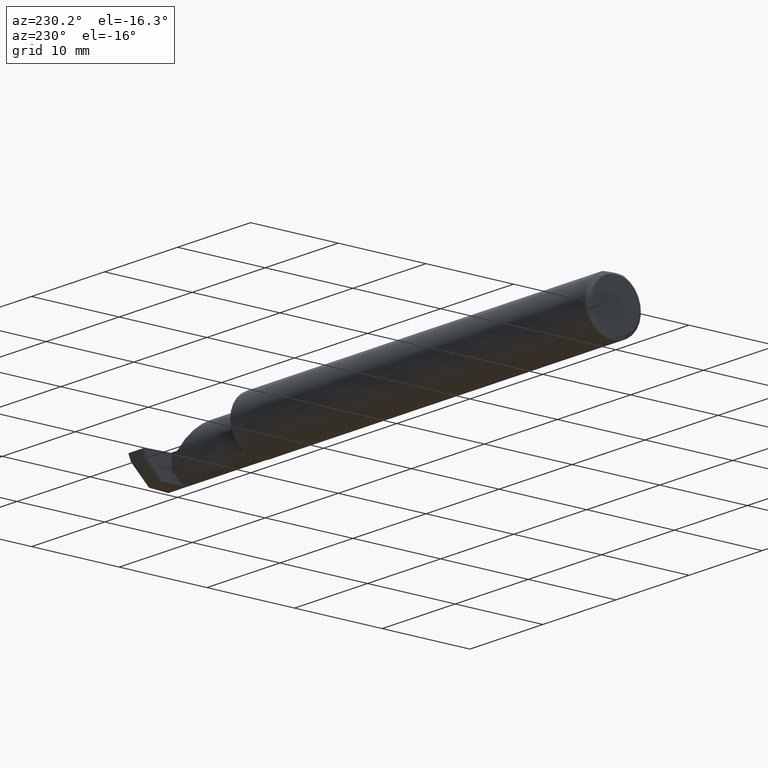
[diagram: clean part render]
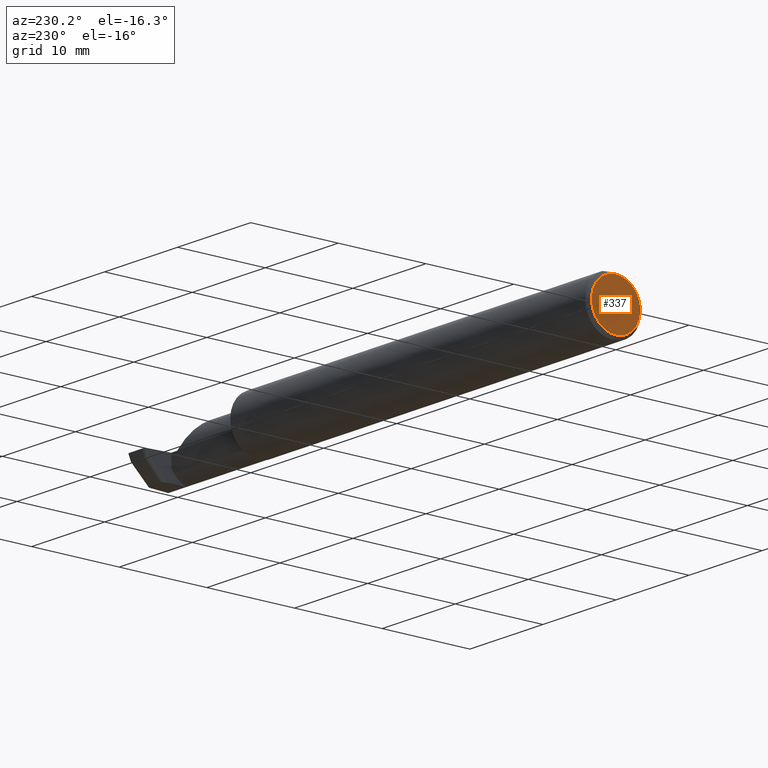
[diagram: same view with one face highlighted and labeled with its STEP entity id]
A machine part, auxiliary view. The second image highlights one B-rep face of the part: STEP entity #337.
In plain terms, the highlighted planar face has unit normal (1, 0, 0).
Its self-contained STEP definition (entity closure, byte-faithful):
#41 = CIRCLE ( 'NONE', #523, 0.1098500000000004473 ) ;
#68 = DIRECTION ( 'NONE',  ( 0.000000000000000000, 0.000000000000000000, -1.000000000000000000 ) ) ;
#110 = VERTEX_POINT ( 'NONE', #798 ) ;
#286 = AXIS2_PLACEMENT_3D ( 'NONE', #306, #553, #310 ) ;
#306 = CARTESIAN_POINT ( 'NONE',  ( 0.000000000000000000, 0.000000000000000000, 0.000000000000000000 ) ) ;
#310 = DIRECTION ( 'NONE',  ( 0.000000000000000000, 0.000000000000000000, -1.000000000000000000 ) ) ;
#336 = DIRECTION ( 'NONE',  ( -1.000000000000000000, -0.000000000000000000, -0.000000000000000000 ) ) ;
#337 = ADVANCED_FACE ( 'NONE', ( #479 ), #485, .F. ) ;
#345 = CARTESIAN_POINT ( 'NONE',  ( 0.000000000000000000, 0.000000000000000000, 0.000000000000000000 ) ) ;
#414 = AXIS2_PLACEMENT_3D ( 'NONE', #345, #587, #68 ) ;
#479 = FACE_OUTER_BOUND ( 'NONE', #608, .T. ) ;
#485 = PLANE ( 'NONE',  #286 ) ;
#523 = AXIS2_PLACEMENT_3D ( 'NONE', #672, #336, #741 ) ;
#553 = DIRECTION ( 'NONE',  ( 1.000000000000000000, 0.000000000000000000, 0.000000000000000000 ) ) ;
#587 = DIRECTION ( 'NONE',  ( -1.000000000000000000, -0.000000000000000000, -0.000000000000000000 ) ) ;
#591 = VERTEX_POINT ( 'NONE', #727 ) ;
#608 = EDGE_LOOP ( 'NONE', ( #631, #650 ) ) ;
#631 = ORIENTED_EDGE ( 'NONE', *, *, #654, .T. ) ;
#650 = ORIENTED_EDGE ( 'NONE', *, *, #655, .T. ) ;
#654 = EDGE_CURVE ( 'NONE', #110, #591, #802, .T. ) ;
#655 = EDGE_CURVE ( 'NONE', #591, #110, #41, .T. ) ;
#672 = CARTESIAN_POINT ( 'NONE',  ( 0.000000000000000000, 0.000000000000000000, 0.000000000000000000 ) ) ;
#727 = CARTESIAN_POINT ( 'NONE',  ( 0.000000000000000000, 1.437123018799421600E-17, 0.1098500000000004473 ) ) ;
#741 = DIRECTION ( 'NONE',  ( 0.000000000000000000, 0.000000000000000000, -1.000000000000000000 ) ) ;
#798 = CARTESIAN_POINT ( 'NONE',  ( 0.000000000000000000, 0.000000000000000000, -0.1098500000000004473 ) ) ;
#802 = CIRCLE ( 'NONE', #414, 0.1098500000000004473 ) ;